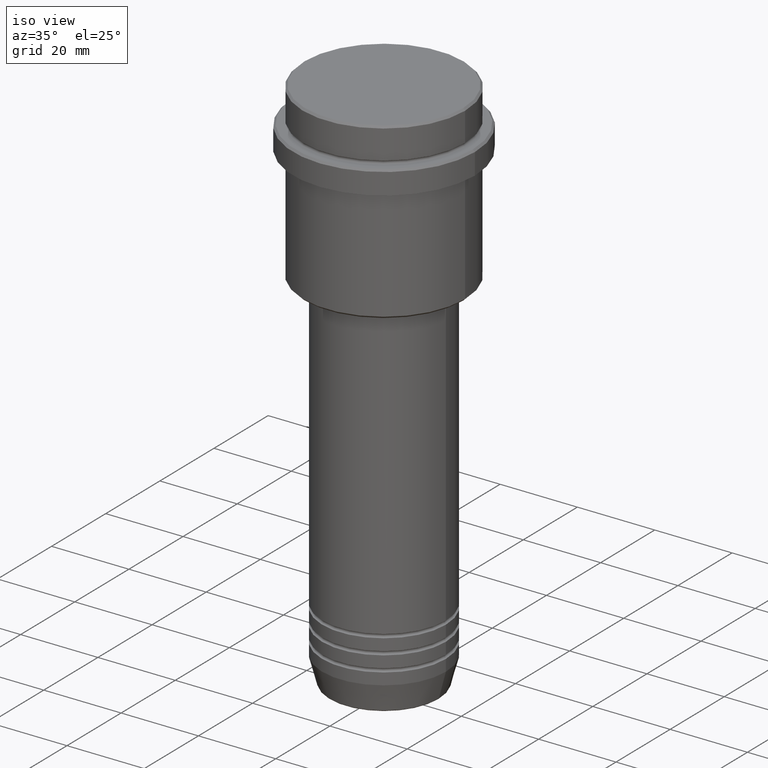
[diagram: clean part render]
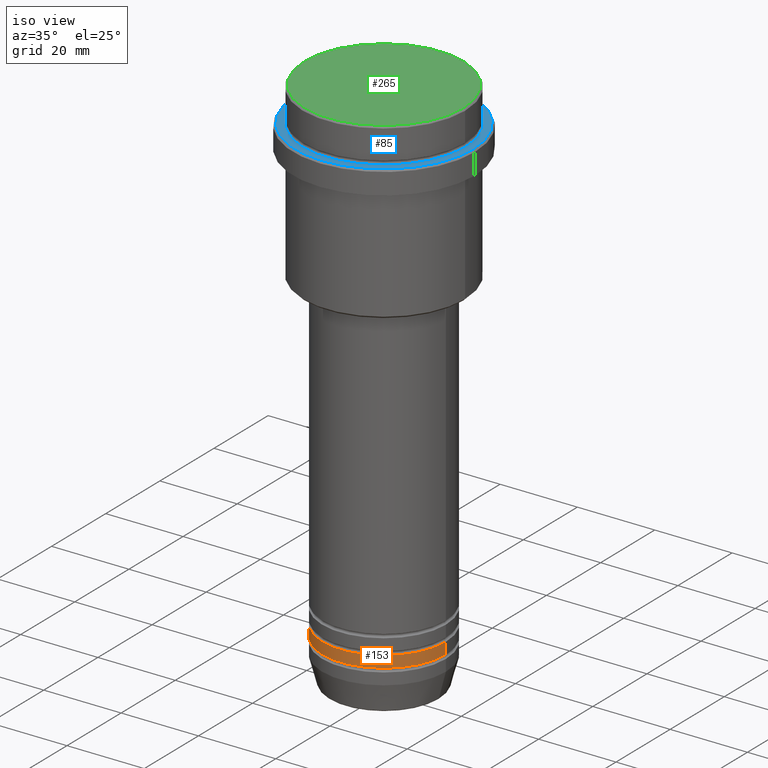
[diagram: same view with three faces highlighted in distinct colors, each labeled with its STEP entity id]
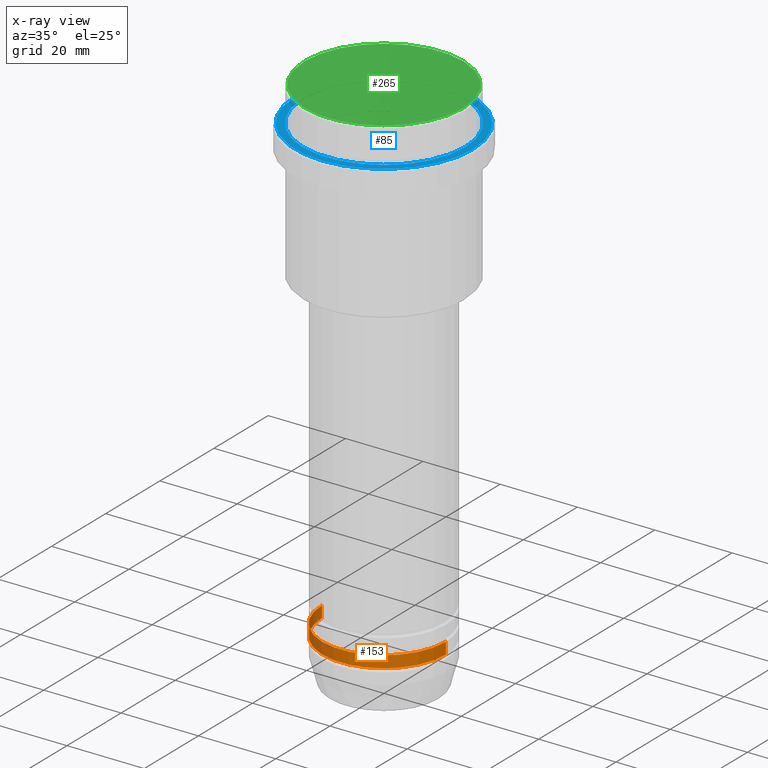
[diagram: x-ray of the same camera — body ghosted, the three highlighted faces saturated]
A machine part, iso view with three faces highlighted in distinct colors.
The next image is the same camera in x-ray (body ghosted, the three faces saturated) — at least one of them is partly hidden behind the body in this view.
Their STEP definitions:

[orange] entity #153 — the highlighted cylindrical surface (partial cylindrical patch) has radius 16 mm, axis along (-0, -0, 1).
#20 = DIRECTION ( 'NONE',  ( -0.000000000000000000, -0.000000000000000000, 1.000000000000000000 ) ) ;
#29 = CARTESIAN_POINT ( 'NONE',  ( 16.00000000000000000, 0.000000000000000000, -125.9999999999998863 ) ) ;
#60 = EDGE_CURVE ( 'NONE', #252, #1009, #578, .T. ) ;
#72 = ORIENTED_EDGE ( 'NONE', *, *, #891, .T. ) ;
#153 = ADVANCED_FACE ( 'NONE', ( #803 ), #1345, .T. ) ;
#188 = VERTEX_POINT ( 'NONE', #244 ) ;
#244 = CARTESIAN_POINT ( 'NONE',  ( -16.00000000000000000, 1.959434878635765131E-15, -128.9999999999998863 ) ) ;
#252 = VERTEX_POINT ( 'NONE', #780 ) ;
#281 = DIRECTION ( 'NONE',  ( -0.000000000000000000, -0.000000000000000000, 1.000000000000000000 ) ) ;
#282 = DIRECTION ( 'NONE',  ( 1.000000000000000000, 0.000000000000000000, 0.000000000000000000 ) ) ;
#339 = DIRECTION ( 'NONE',  ( -0.000000000000000000, -0.000000000000000000, 1.000000000000000000 ) ) ;
#363 = ORIENTED_EDGE ( 'NONE', *, *, #60, .F. ) ;
#371 = CARTESIAN_POINT ( 'NONE',  ( 0.000000000000000000, 0.000000000000000000, 0.000000000000000000 ) ) ;
#381 = AXIS2_PLACEMENT_3D ( 'NONE', #889, #1183, #1313 ) ;
#521 = ORIENTED_EDGE ( 'NONE', *, *, #1252, .T. ) ;
#578 = CIRCLE ( 'NONE', #1325, 16.00000000000000000 ) ;
#630 = AXIS2_PLACEMENT_3D ( 'NONE', #371, #339, #781 ) ;
#634 = EDGE_CURVE ( 'NONE', #188, #252, #1236, .T. ) ;
#683 = EDGE_LOOP ( 'NONE', ( #1244, #521, #72, #363 ) ) ;
#727 = CIRCLE ( 'NONE', #381, 16.00000000000000000 ) ;
#733 = VERTEX_POINT ( 'NONE', #1258 ) ;
#753 = VECTOR ( 'NONE', #20, 1000.000000000000000 ) ;
#780 = CARTESIAN_POINT ( 'NONE',  ( -16.00000000000000000, 1.959434878635765131E-15, -125.9999999999998863 ) ) ;
#781 = DIRECTION ( 'NONE',  ( 1.000000000000000000, 0.000000000000000000, 0.000000000000000000 ) ) ;
#803 = FACE_OUTER_BOUND ( 'NONE', #683, .T. ) ;
#889 = CARTESIAN_POINT ( 'NONE',  ( 0.000000000000000000, 0.000000000000000000, -128.9999999999998863 ) ) ;
#891 = EDGE_CURVE ( 'NONE', #733, #1009, #1013, .T. ) ;
#1009 = VERTEX_POINT ( 'NONE', #29 ) ;
#1013 = LINE ( 'NONE', #1194, #753 ) ;
#1087 = CARTESIAN_POINT ( 'NONE',  ( 0.000000000000000000, 0.000000000000000000, -125.9999999999998863 ) ) ;
#1183 = DIRECTION ( 'NONE',  ( -0.000000000000000000, -0.000000000000000000, 1.000000000000000000 ) ) ;
#1194 = CARTESIAN_POINT ( 'NONE',  ( 16.00000000000000000, 0.000000000000000000, 0.000000000000000000 ) ) ;
#1236 = LINE ( 'NONE', #1243, #1237 ) ;
#1237 = VECTOR ( 'NONE', #281, 1000.000000000000000 ) ;
#1243 = CARTESIAN_POINT ( 'NONE',  ( -16.00000000000000000, 1.959434878635765131E-15, 0.000000000000000000 ) ) ;
#1244 = ORIENTED_EDGE ( 'NONE', *, *, #634, .F. ) ;
#1252 = EDGE_CURVE ( 'NONE', #188, #733, #727, .T. ) ;
#1258 = CARTESIAN_POINT ( 'NONE',  ( 16.00000000000000000, 0.000000000000000000, -128.9999999999998863 ) ) ;
#1259 = DIRECTION ( 'NONE',  ( -0.000000000000000000, -0.000000000000000000, 1.000000000000000000 ) ) ;
#1313 = DIRECTION ( 'NONE',  ( 1.000000000000000000, 0.000000000000000000, 0.000000000000000000 ) ) ;
#1325 = AXIS2_PLACEMENT_3D ( 'NONE', #1087, #1259, #282 ) ;
#1345 = CYLINDRICAL_SURFACE ( 'NONE', #630, 16.00000000000000000 ) ;

[blue] entity #85 — the highlighted planar face has unit normal (0, -0, 1).
#13 = EDGE_CURVE ( 'NONE', #973, #673, #1205, .T. ) ;
#49 = CARTESIAN_POINT ( 'NONE',  ( 0.000000000000000000, 0.000000000000000000, -9.000000000000000000 ) ) ;
#74 = AXIS2_PLACEMENT_3D ( 'NONE', #413, #193, #248 ) ;
#85 = ADVANCED_FACE ( 'NONE', ( #1288, #745 ), #526, .T. ) ;
#91 = CARTESIAN_POINT ( 'NONE',  ( -20.99999999999999289, 2.571758278209440872E-15, -9.000000000000000000 ) ) ;
#110 = DIRECTION ( 'NONE',  ( 0.000000000000000000, 0.000000000000000000, -1.000000000000000000 ) ) ;
#125 = DIRECTION ( 'NONE',  ( 1.000000000000000000, 0.000000000000000000, 0.000000000000000000 ) ) ;
#150 = DIRECTION ( 'NONE',  ( 0.000000000000000000, 0.000000000000000000, -1.000000000000000000 ) ) ;
#174 = VERTEX_POINT ( 'NONE', #91 ) ;
#193 = DIRECTION ( 'NONE',  ( 0.000000000000000000, -0.000000000000000000, 1.000000000000000000 ) ) ;
#248 = DIRECTION ( 'NONE',  ( 1.000000000000000000, 0.000000000000000000, 0.000000000000000000 ) ) ;
#264 = CARTESIAN_POINT ( 'NONE',  ( -23.00000000000001066, 0.000000000000000000, -9.000000000000000000 ) ) ;
#323 = CARTESIAN_POINT ( 'NONE',  ( 0.000000000000000000, 0.000000000000000000, -9.000000000000000000 ) ) ;
#332 = EDGE_CURVE ( 'NONE', #1137, #174, #442, .T. ) ;
#361 = DIRECTION ( 'NONE',  ( 1.000000000000000000, 0.000000000000000000, 0.000000000000000000 ) ) ;
#405 = CIRCLE ( 'NONE', #984, 20.99999999999999289 ) ;
#413 = CARTESIAN_POINT ( 'NONE',  ( 0.000000000000000000, 20.49999999999999645, -9.000000000000000000 ) ) ;
#441 = ORIENTED_EDGE ( 'NONE', *, *, #13, .T. ) ;
#442 = CIRCLE ( 'NONE', #749, 20.99999999999999289 ) ;
#511 = CARTESIAN_POINT ( 'NONE',  ( 20.99999999999999289, 0.000000000000000000, -9.000000000000000000 ) ) ;
#526 = PLANE ( 'NONE',  #74 ) ;
#552 = DIRECTION ( 'NONE',  ( 1.000000000000000000, 0.000000000000000000, 0.000000000000000000 ) ) ;
#562 = AXIS2_PLACEMENT_3D ( 'NONE', #49, #609, #361 ) ;
#609 = DIRECTION ( 'NONE',  ( -0.000000000000000000, -0.000000000000000000, 1.000000000000000000 ) ) ;
#620 = DIRECTION ( 'NONE',  ( -0.000000000000000000, -0.000000000000000000, 1.000000000000000000 ) ) ;
#673 = VERTEX_POINT ( 'NONE', #264 ) ;
#745 = FACE_BOUND ( 'NONE', #1262, .T. ) ;
#749 = AXIS2_PLACEMENT_3D ( 'NONE', #1231, #150, #125 ) ;
#776 = CARTESIAN_POINT ( 'NONE',  ( 23.00000000000001066, 2.847303808017596928E-15, -9.000000000000000000 ) ) ;
#837 = ORIENTED_EDGE ( 'NONE', *, *, #1335, .T. ) ;
#916 = CIRCLE ( 'NONE', #562, 23.00000000000001066 ) ;
#954 = CARTESIAN_POINT ( 'NONE',  ( 0.000000000000000000, 0.000000000000000000, -9.000000000000000000 ) ) ;
#973 = VERTEX_POINT ( 'NONE', #776 ) ;
#979 = DIRECTION ( 'NONE',  ( 1.000000000000000000, 0.000000000000000000, 0.000000000000000000 ) ) ;
#984 = AXIS2_PLACEMENT_3D ( 'NONE', #323, #110, #552 ) ;
#988 = ORIENTED_EDGE ( 'NONE', *, *, #1093, .T. ) ;
#1093 = EDGE_CURVE ( 'NONE', #673, #973, #916, .T. ) ;
#1137 = VERTEX_POINT ( 'NONE', #511 ) ;
#1167 = EDGE_LOOP ( 'NONE', ( #988, #441 ) ) ;
#1205 = CIRCLE ( 'NONE', #1398, 23.00000000000001066 ) ;
#1231 = CARTESIAN_POINT ( 'NONE',  ( 0.000000000000000000, 0.000000000000000000, -9.000000000000000000 ) ) ;
#1262 = EDGE_LOOP ( 'NONE', ( #1379, #837 ) ) ;
#1288 = FACE_OUTER_BOUND ( 'NONE', #1167, .T. ) ;
#1335 = EDGE_CURVE ( 'NONE', #174, #1137, #405, .T. ) ;
#1379 = ORIENTED_EDGE ( 'NONE', *, *, #332, .T. ) ;
#1398 = AXIS2_PLACEMENT_3D ( 'NONE', #954, #620, #979 ) ;

[green] entity #265 — the highlighted planar face has unit normal (0, -0, 1).
#5 = AXIS2_PLACEMENT_3D ( 'NONE', #663, #542, #985 ) ;
#35 = VERTEX_POINT ( 'NONE', #736 ) ;
#47 = ORIENTED_EDGE ( 'NONE', *, *, #1381, .T. ) ;
#76 = AXIS2_PLACEMENT_3D ( 'NONE', #1045, #805, #1227 ) ;
#98 = CARTESIAN_POINT ( 'NONE',  ( 20.49999999999996447, 2.541142108230755902E-15, 0.000000000000000000 ) ) ;
#265 = ADVANCED_FACE ( 'NONE', ( #845 ), #500, .T. ) ;
#358 = DIRECTION ( 'NONE',  ( -0.000000000000000000, -0.000000000000000000, 1.000000000000000000 ) ) ;
#500 = PLANE ( 'NONE',  #76 ) ;
#542 = DIRECTION ( 'NONE',  ( -0.000000000000000000, -0.000000000000000000, 1.000000000000000000 ) ) ;
#571 = EDGE_LOOP ( 'NONE', ( #47, #1129 ) ) ;
#611 = CIRCLE ( 'NONE', #5, 20.49999999999996447 ) ;
#663 = CARTESIAN_POINT ( 'NONE',  ( 0.000000000000000000, 0.000000000000000000, 0.000000000000000000 ) ) ;
#736 = CARTESIAN_POINT ( 'NONE',  ( -20.49999999999996447, 0.000000000000000000, 0.000000000000000000 ) ) ;
#805 = DIRECTION ( 'NONE',  ( 0.000000000000000000, -0.000000000000000000, 1.000000000000000000 ) ) ;
#808 = DIRECTION ( 'NONE',  ( 1.000000000000000000, 0.000000000000000000, 0.000000000000000000 ) ) ;
#845 = FACE_OUTER_BOUND ( 'NONE', #571, .T. ) ;
#985 = DIRECTION ( 'NONE',  ( 1.000000000000000000, 0.000000000000000000, 0.000000000000000000 ) ) ;
#1045 = CARTESIAN_POINT ( 'NONE',  ( 0.000000000000000000, 0.000000000000000000, 0.000000000000000000 ) ) ;
#1115 = CARTESIAN_POINT ( 'NONE',  ( 0.000000000000000000, 0.000000000000000000, 0.000000000000000000 ) ) ;
#1129 = ORIENTED_EDGE ( 'NONE', *, *, #1277, .T. ) ;
#1190 = AXIS2_PLACEMENT_3D ( 'NONE', #1115, #358, #808 ) ;
#1227 = DIRECTION ( 'NONE',  ( 1.000000000000000000, 0.000000000000000000, 0.000000000000000000 ) ) ;
#1275 = VERTEX_POINT ( 'NONE', #98 ) ;
#1277 = EDGE_CURVE ( 'NONE', #1275, #35, #611, .T. ) ;
#1284 = CIRCLE ( 'NONE', #1190, 20.49999999999996447 ) ;
#1381 = EDGE_CURVE ( 'NONE', #35, #1275, #1284, .T. ) ;